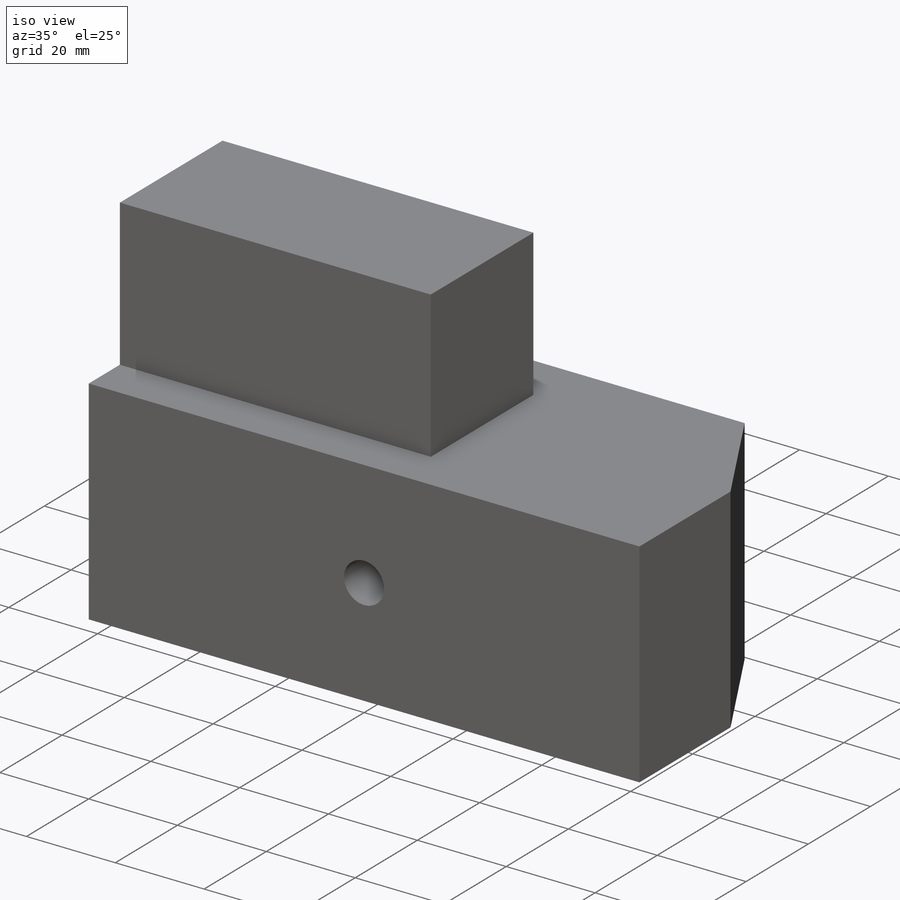
[diagram: iso view]
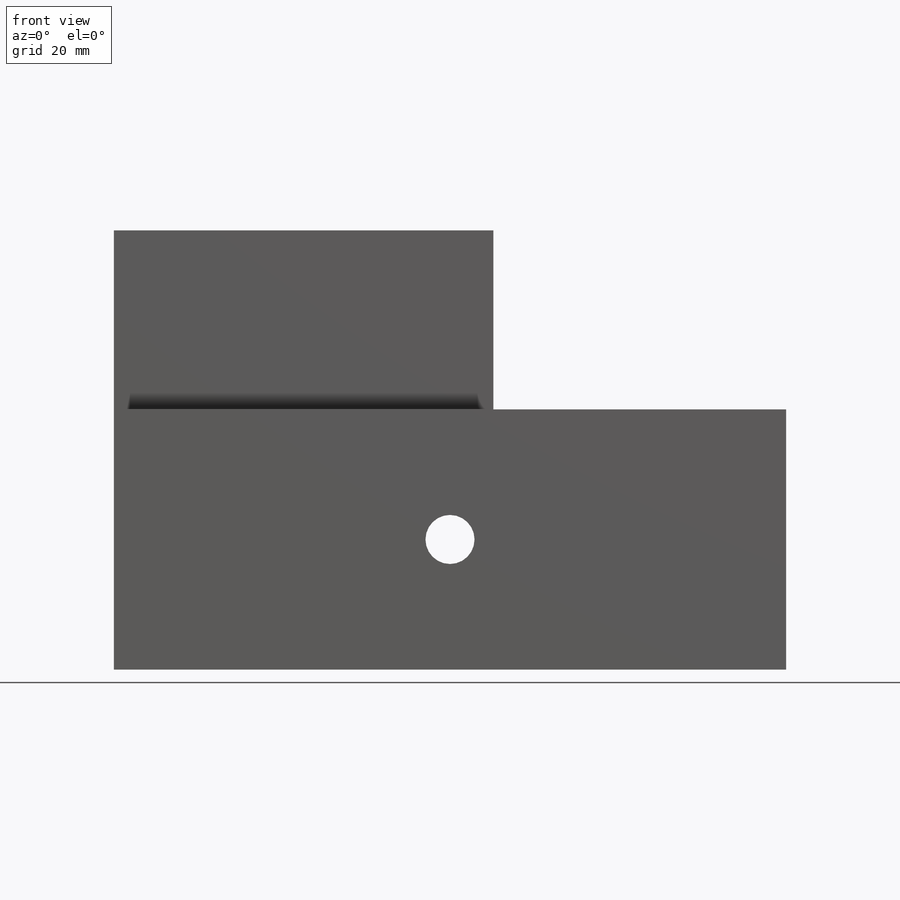
[diagram: front view]
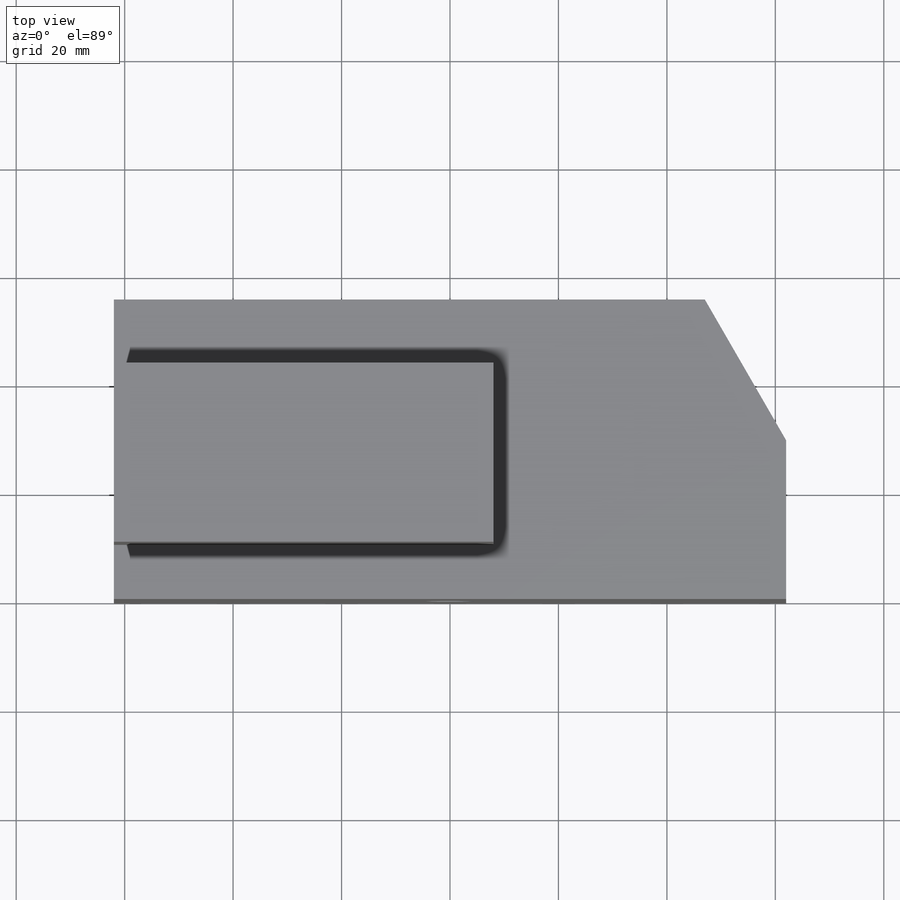
[diagram: top view]
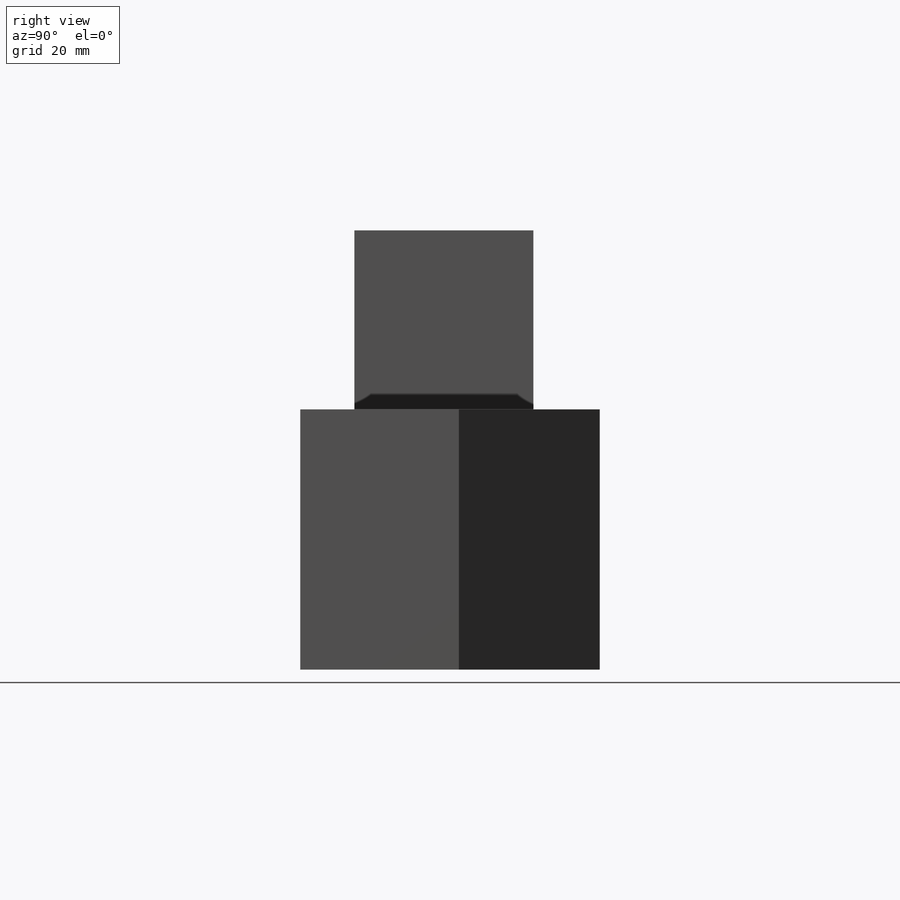
[diagram: right view]
SOLIDWORKS PART (.sldprt)
format: sldprt  version: not decoded by parser v0  size: 155,136 bytes
history: native  units: mm
features: sketch x2, extrude x2, material x1, chamfer x1 (+11 scaffold rows collapsed)
feature tree (17):
  scaffold x11  (default folders/planes/origin — collapsed)
  material  "Material <not specified>"
  sketch  "Sketch1"  dims[D1=9.05mm D2=62.0mm D3=62.0mm D4=48.0mm]
  extrude  "Boss-Extrude1"  Depth=55.25mm
  sketch  "Sketch2"  dims[D1=70.0mm D2=33.0mm D3=10.0mm D4=0.01mm]
  extrude  "Boss-Extrude2"  Depth=33mm
  chamfer  "Chamfer1"  Distance=15mm Angle=60deg
decode coverage: 5 of 5 modeling features carry decoded parameters
note: suppression state not decoded; provenance and decode notes live in map.json
